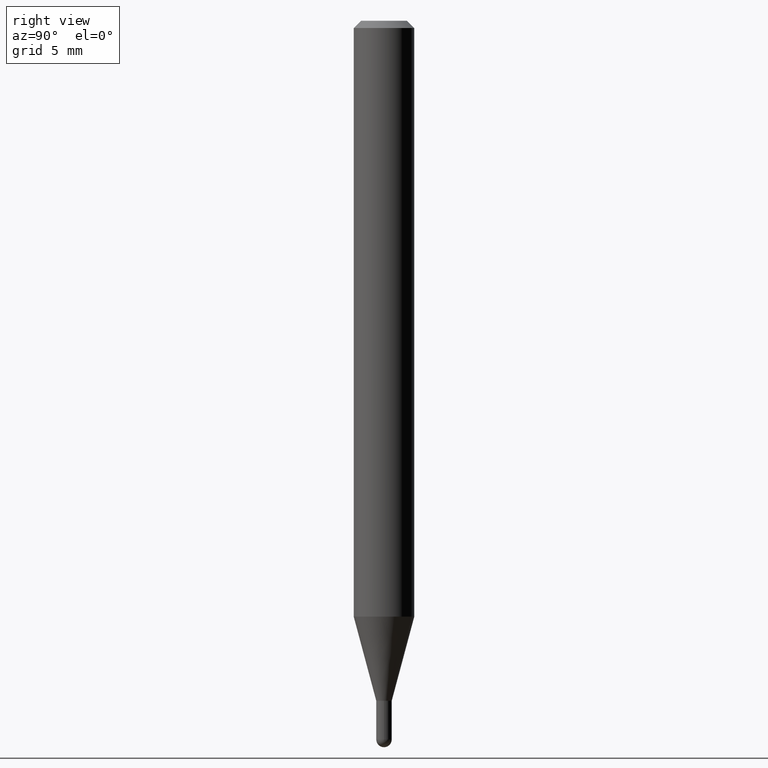
[diagram: clean part render]
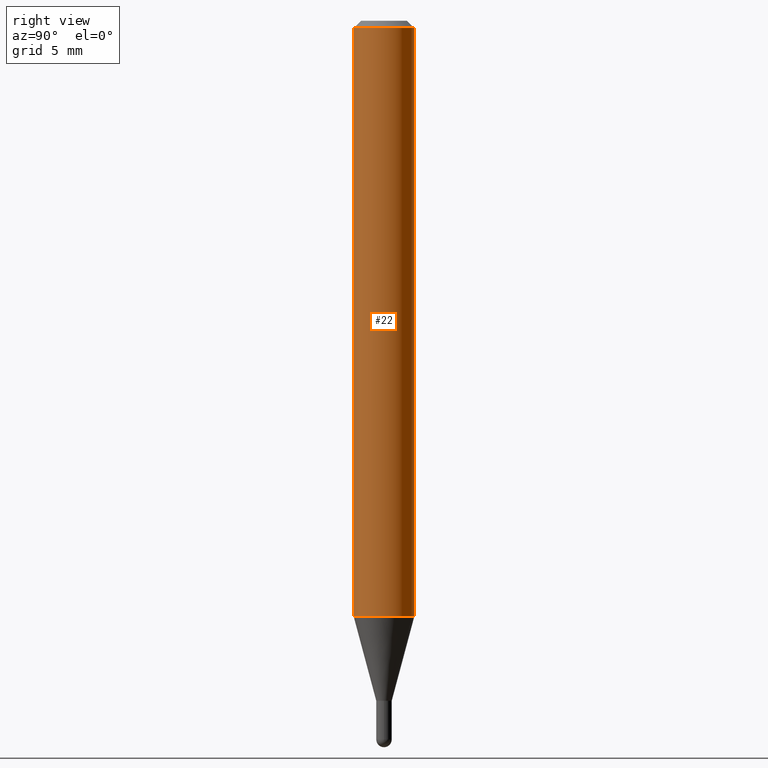
[diagram: same view with one face highlighted and labeled with its STEP entity id]
A machine part, right view. The second image highlights one B-rep face of the part: STEP entity #22.
In plain terms, the highlighted cylindrical surface (edge-blend (fillet) strip) has radius 1.5875 mm, axis along (-0, 0, 1).
Its self-contained STEP definition (entity closure, byte-faithful):
#10 = CARTESIAN_POINT ( 'NONE',  ( 0.000000000000000000, 0.000000000000000000, 0.000000000000000000 ) ) ;
#22 = ADVANCED_FACE ( 'NONE', ( #169 ), #333, .T. ) ;
#31 = CARTESIAN_POINT ( 'NONE',  ( 4.440892098500924943E-16, 0.06249999999999567707, -1.230459637448052979 ) ) ;
#37 = VERTEX_POINT ( 'NONE', #452 ) ;
#44 = DIRECTION ( 'NONE',  ( -6.982962677686265922E-15, -1.000000000000000000, 4.370956789862821150E-15 ) ) ;
#75 = CARTESIAN_POINT ( 'NONE',  ( -4.364351673553912750E-16, -0.06250000000000005551, -0.01499999999999979128 ) ) ;
#76 = ORIENTED_EDGE ( 'NONE', *, *, #473, .F. ) ;
#82 = DIRECTION ( 'NONE',  ( -2.445476360010259663E-29, 3.491470521335632447E-15, 1.000000000000000000 ) ) ;
#113 = CARTESIAN_POINT ( 'NONE',  ( -4.364351673553615941E-16, -0.06250000000000430211, -1.230459637448052534 ) ) ;
#114 = ORIENTED_EDGE ( 'NONE', *, *, #340, .F. ) ;
#119 = VECTOR ( 'NONE', #82, 39.37007874015748143 ) ;
#134 = DIRECTION ( 'NONE',  ( -2.445476360010259663E-29, 3.491470521335632447E-15, 1.000000000000000000 ) ) ;
#144 = EDGE_CURVE ( 'NONE', #239, #37, #342, .T. ) ;
#162 = EDGE_LOOP ( 'NONE', ( #363, #205, #76, #114 ) ) ;
#167 = AXIS2_PLACEMENT_3D ( 'NONE', #297, #364, #326 ) ;
#169 = FACE_OUTER_BOUND ( 'NONE', #162, .T. ) ;
#172 = AXIS2_PLACEMENT_3D ( 'NONE', #10, #134, #293 ) ;
#191 = DIRECTION ( 'NONE',  ( -2.445476360010259663E-29, 3.491470521335632447E-15, 1.000000000000000000 ) ) ;
#205 = ORIENTED_EDGE ( 'NONE', *, *, #144, .T. ) ;
#239 = VERTEX_POINT ( 'NONE', #31 ) ;
#256 = DIRECTION ( 'NONE',  ( -2.445476360010259663E-29, 3.491470521335632447E-15, 1.000000000000000000 ) ) ;
#262 = CARTESIAN_POINT ( 'NONE',  ( 4.440892098500625669E-16, 0.06250000000000000000, -2.182169075834770279E-16 ) ) ;
#293 = DIRECTION ( 'NONE',  ( -6.982962677686265922E-15, -1.000000000000000000, 3.491470521335632447E-15 ) ) ;
#297 = CARTESIAN_POINT ( 'NONE',  ( 3.668214540015391789E-31, -5.237205782003451554E-17, -0.01500000000000000812 ) ) ;
#314 = LINE ( 'NONE', #320, #119 ) ;
#320 = CARTESIAN_POINT ( 'NONE',  ( -4.364351673553916201E-16, -0.06250000000000000000, 2.182169075834770279E-16 ) ) ;
#326 = DIRECTION ( 'NONE',  ( -6.982962677686265922E-15, -1.000000000000000000, 3.483106191921935554E-15 ) ) ;
#333 = CYLINDRICAL_SURFACE ( 'NONE', #172, 0.06250000000000000000 ) ;
#340 = EDGE_CURVE ( 'NONE', #353, #355, #314, .T. ) ;
#342 = LINE ( 'NONE', #262, #431 ) ;
#353 = VERTEX_POINT ( 'NONE', #113 ) ;
#355 = VERTEX_POINT ( 'NONE', #75 ) ;
#363 = ORIENTED_EDGE ( 'NONE', *, *, #396, .T. ) ;
#364 = DIRECTION ( 'NONE',  ( -2.445476360010259663E-29, 3.491470521335632447E-15, 1.000000000000000000 ) ) ;
#390 = AXIS2_PLACEMENT_3D ( 'NONE', #392, #191, #44 ) ;
#391 = CIRCLE ( 'NONE', #167, 0.06250000000000000000 ) ;
#392 = CARTESIAN_POINT ( 'NONE',  ( 3.009059955326007696E-29, -4.296113551843206303E-15, -1.230459637448052757 ) ) ;
#396 = EDGE_CURVE ( 'NONE', #353, #239, #497, .T. ) ;
#431 = VECTOR ( 'NONE', #256, 39.37007874015748143 ) ;
#452 = CARTESIAN_POINT ( 'NONE',  ( 4.440892098500928887E-16, 0.06249999999999995837, -0.01500000000000022669 ) ) ;
#473 = EDGE_CURVE ( 'NONE', #355, #37, #391, .T. ) ;
#497 = CIRCLE ( 'NONE', #390, 0.06250000000000000000 ) ;